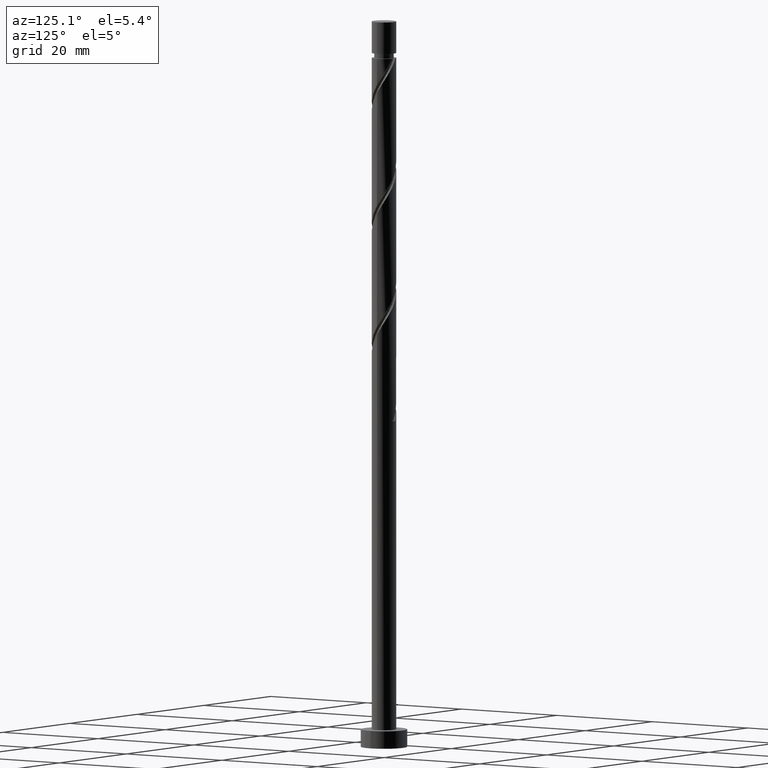
[diagram: clean part render]
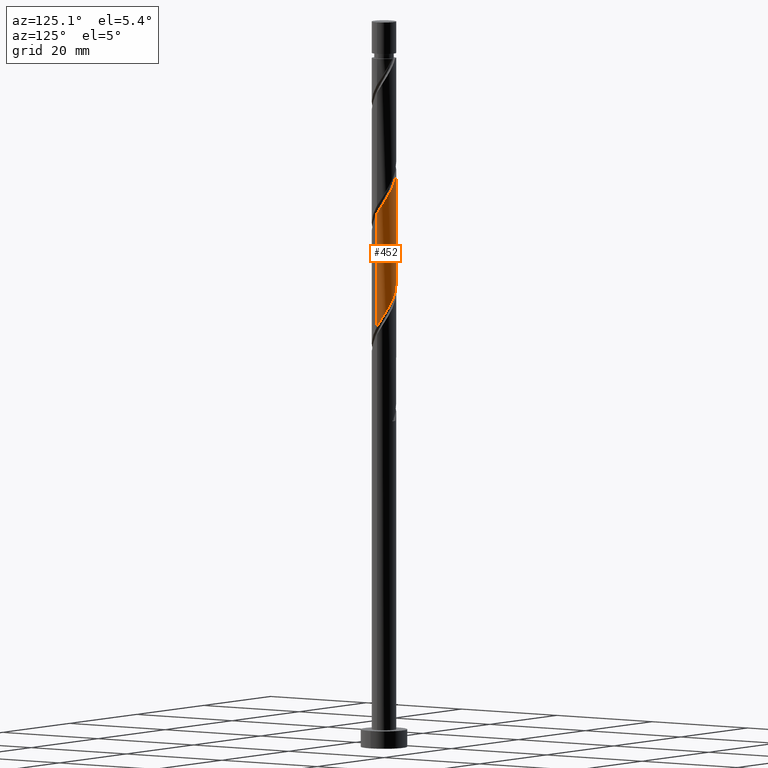
[diagram: same view with one face highlighted and labeled with its STEP entity id]
A machine part, auxiliary view. The second image highlights one B-rep face of the part: STEP entity #452.
In plain terms, the highlighted cylindrical surface (edge-blend (fillet) strip) has radius 2.1 mm, axis along (-0, -0, -1).
Its self-contained STEP definition (entity closure, byte-faithful):
#16 = CARTESIAN_POINT ( 'NONE',  ( 2.058000000000002938, 0.4178947235847808583, 92.69254614362534994 ) ) ;
#53 = ORIENTED_EDGE ( 'NONE', *, *, #568, .F. ) ;
#56 = VECTOR ( 'NONE', #700, 1000.000000000000000 ) ;
#63 = VERTEX_POINT ( 'NONE', #326 ) ;
#95 = CARTESIAN_POINT ( 'NONE',  ( -2.100000000000000089, -2.863682631592311736E-15, 82.94068191842897875 ) ) ;
#110 = CARTESIAN_POINT ( 'NONE',  ( -0.8715781159782010068, 1.910589329957615545, 79.15087947695870696 ) ) ;
#149 = CARTESIAN_POINT ( 'NONE',  ( 1.828137739088110614, 1.033398474414310542, 93.73421281029200713 ) ) ;
#177 = CARTESIAN_POINT ( 'NONE',  ( -2.100000000000000089, 0.000000000000000000, 125.0000000000000000 ) ) ;
#220 = CARTESIAN_POINT ( 'NONE',  ( 2.086410881982744492, 0.2385154744329734122, 72.90087947695867854 ) ) ;
#238 = CARTESIAN_POINT ( 'NONE',  ( -2.057999999999999829, 0.4178947235847810804, 82.27587947695870696 ) ) ;
#245 = CARTESIAN_POINT ( 'NONE',  ( 1.033398474414310320, 1.828137739088107505, 76.02587947695869275 ) ) ;
#263 = CARTESIAN_POINT ( 'NONE',  ( 1.991811978090451074, 0.7438499017726770690, 93.21337947695869275 ) ) ;
#264 = EDGE_CURVE ( 'NONE', #63, #297, #578, .T. ) ;
#278 = CARTESIAN_POINT ( 'NONE',  ( 0.2385154744329750776, 2.086410881982748489, 96.85921281029200713 ) ) ;
#297 = VERTEX_POINT ( 'NONE', #349 ) ;
#309 = LINE ( 'NONE', #177, #56 ) ;
#317 = VERTEX_POINT ( 'NONE', #826 ) ;
#326 = CARTESIAN_POINT ( 'NONE',  ( 2.100000000000003197, 2.114027492432004742E-15, 92.02774370215507815 ) ) ;
#328 = FACE_OUTER_BOUND ( 'NONE', #646, .T. ) ;
#346 = CARTESIAN_POINT ( 'NONE',  ( 1.547745982457618963, 1.419324618889667766, 74.98421281029199292 ) ) ;
#349 = CARTESIAN_POINT ( 'NONE',  ( -2.100000000000003642, -1.319393044922102325E-15, 102.4444103688217496 ) ) ;
#355 = CARTESIAN_POINT ( 'NONE',  ( -1.991811978090447521, 0.7438499017726768470, 81.75504614362537836 ) ) ;
#360 = EDGE_CURVE ( 'NONE', #63, #317, #949, .T. ) ;
#365 = CARTESIAN_POINT ( 'NONE',  ( 1.772544917859294689, 1.174185737693568266, 74.46337947695867854 ) ) ;
#384 = CARTESIAN_POINT ( 'NONE',  ( -0.7438499017726775131, 1.991811978090451074, 98.42171281029202135 ) ) ;
#389 = CARTESIAN_POINT ( 'NONE',  ( 0.8715781159782027832, 1.910589329957617988, 95.81754614362534994 ) ) ;
#444 = VECTOR ( 'NONE', #719, 1000.000000000000000 ) ;
#452 = ADVANCED_FACE ( 'NONE', ( #328 ), #922, .T. ) ;
#459 = ORIENTED_EDGE ( 'NONE', *, *, #360, .T. ) ;
#484 = CARTESIAN_POINT ( 'NONE',  ( -1.664463500085766823, 1.322947047055942793, 80.71337947695867854 ) ) ;
#505 = CARTESIAN_POINT ( 'NONE',  ( 1.174185737693570930, 1.772544917859297131, 95.29671281029200713 ) ) ;
#563 = VERTEX_POINT ( 'NONE', #1178 ) ;
#568 = EDGE_CURVE ( 'NONE', #297, #563, #309, .T. ) ;
#578 =( BOUNDED_CURVE ( )  B_SPLINE_CURVE ( 2, ( #1247, #1479, #16, #263, #149, #762, #1253, #505, #389, #1469, #278, #643, #877, #384, #1130, #1486, #871, #1242, #1121, #638, #1003, #997, #756 ),
 .UNSPECIFIED., .F., .T. ) 
 B_SPLINE_CURVE_WITH_KNOTS ( ( 3, 2, 2, 2, 2, 2, 2, 2, 2, 2, 2, 3 ),
 ( 0.4295322023138551382, 0.4375000000000000000, 0.4499999999999999556, 0.4625000000000000222, 0.4749999999999999778, 0.4875000000000000444, 0.5000000000000000000, 0.5124999999999999556, 0.5250000000000000222, 0.5374999999999999778, 0.5500000000000000444, 0.5545322023138552492 ),
 .UNSPECIFIED. ) 
 CURVE ( )  GEOMETRIC_REPRESENTATION_ITEM ( )  RATIONAL_B_SPLINE_CURVE ( ( 0.9039174447099407317, 0.9019565955404699187, 0.9090909090909184975, 0.8978984914501344505, 0.9090909090909184975, 0.8978984914501344505, 0.9090909090909184975, 0.8978984914501344505, 0.9090909090909184975, 0.8978984914501344505, 0.9090909090909184975, 0.8978984914501344505, 0.9090909090909184975, 0.8978984914501344505, 0.9090909090909184975, 0.8978984914501344505, 0.9090909090909184975, 0.8978984914501344505, 0.9090909090909184975, 0.8978984914501344505, 0.9090909090909184975, 0.9050328050005829184, 0.9039174447099407317 ) ) 
 REPRESENTATION_ITEM ( '' )  );
#583 = CARTESIAN_POINT ( 'NONE',  ( 0.09193954539688536931, 2.124188021909552582, 77.58837947695870696 ) ) ;
#610 = CARTESIAN_POINT ( 'NONE',  ( -1.419324618889668210, 1.547745982457618741, 80.19254614362532152 ) ) ;
#611 =( BOUNDED_CURVE ( )  B_SPLINE_CURVE ( 2, ( #95, #1206, #238, #355, #1341, #484, #610, #885, #110, #945, #965, #583, #1434, #1458, #245, #740, #346, #365, #1452, #829, #220, #716, #733 ),
 .UNSPECIFIED., .F., .T. ) 
 B_SPLINE_CURVE_WITH_KNOTS ( ( 3, 2, 2, 2, 2, 2, 2, 2, 2, 2, 2, 3 ),
 ( 0.6795322023138551382, 0.6875000000000000000, 0.6999999999999999556, 0.7125000000000000222, 0.7249999999999999778, 0.7375000000000000444, 0.7500000000000000000, 0.7624999999999999556, 0.7750000000000000222, 0.7874999999999999778, 0.8000000000000000444, 0.8045322023138550271 ),
 .UNSPECIFIED. ) 
 CURVE ( )  GEOMETRIC_REPRESENTATION_ITEM ( )  RATIONAL_B_SPLINE_CURVE ( ( 0.9039174447099340703, 0.9019565955404633684, 0.9090909090909118362, 0.8978984914501279002, 0.9090909090909118362, 0.8978984914501279002, 0.9090909090909118362, 0.8978984914501279002, 0.9090909090909118362, 0.8978984914501279002, 0.9090909090909118362, 0.8978984914501279002, 0.9090909090909118362, 0.8978984914501279002, 0.9090909090909118362, 0.8978984914501279002, 0.9090909090909118362, 0.8978984914501279002, 0.9090909090909118362, 0.8978984914501279002, 0.9090909090909118362, 0.9050328050005764791, 0.9039174447099341814 ) ) 
 REPRESENTATION_ITEM ( '' )  );
#638 = CARTESIAN_POINT ( 'NONE',  ( -2.048633742055939955, 0.5689704942628340811, 101.5467128102920356 ) ) ;
#643 = CARTESIAN_POINT ( 'NONE',  ( -0.09193954539688459215, 2.124188021909555690, 97.38004614362536415 ) ) ;
#646 = EDGE_LOOP ( 'NONE', ( #1158, #459, #1047, #53 ) ) ;
#684 = CARTESIAN_POINT ( 'NONE',  ( 0.000000000000000000, 0.000000000000000000, 125.0000000000000000 ) ) ;
#700 = DIRECTION ( 'NONE',  ( -0.000000000000000000, -0.000000000000000000, -1.000000000000000000 ) ) ;
#716 = CARTESIAN_POINT ( 'NONE',  ( 2.099999999999999645, 0.1196448486375127768, 72.71352634096956535 ) ) ;
#719 = DIRECTION ( 'NONE',  ( -0.000000000000000000, -0.000000000000000000, -1.000000000000000000 ) ) ;
#733 = CARTESIAN_POINT ( 'NONE',  ( 2.100000000000000089, 2.608799884277812170E-15, 72.52401525176230734 ) ) ;
#740 = CARTESIAN_POINT ( 'NONE',  ( 1.322947047055943237, 1.664463500085766823, 75.50504614362536415 ) ) ;
#742 = EDGE_CURVE ( 'NONE', #563, #317, #611, .T. ) ;
#756 = CARTESIAN_POINT ( 'NONE',  ( -2.100000000000003642, -1.319393044922102127E-15, 102.4444103688217638 ) ) ;
#762 = CARTESIAN_POINT ( 'NONE',  ( 1.664463500085770598, 1.322947047055944569, 94.25504614362534994 ) ) ;
#826 = CARTESIAN_POINT ( 'NONE',  ( 2.100000000000000089, 2.608799884277812564E-15, 72.52401525176230734 ) ) ;
#829 = CARTESIAN_POINT ( 'NONE',  ( 2.048633742055937290, 0.5689704942628323048, 73.42171281029203556 ) ) ;
#836 = CARTESIAN_POINT ( 'NONE',  ( 2.100000000000000089, 2.571758278209441464E-16, 125.0000000000000000 ) ) ;
#871 = CARTESIAN_POINT ( 'NONE',  ( -1.547745982457620739, 1.419324618889670209, 99.98421281029199292 ) ) ;
#877 = CARTESIAN_POINT ( 'NONE',  ( -0.4178947235847808028, 2.058000000000002938, 97.90087947695867854 ) ) ;
#885 = CARTESIAN_POINT ( 'NONE',  ( -1.174185737693568932, 1.772544917859294467, 79.67171281029203556 ) ) ;
#922 = CYLINDRICAL_SURFACE ( 'NONE', #1286, 2.100000000000000089 ) ;
#945 = CARTESIAN_POINT ( 'NONE',  ( -0.5689704942628327489, 2.048633742055936846, 78.63004614362536415 ) ) ;
#949 = LINE ( 'NONE', #836, #444 ) ;
#965 = CARTESIAN_POINT ( 'NONE',  ( -0.2385154744329738841, 2.086410881982744492, 78.10921281029200713 ) ) ;
#997 = CARTESIAN_POINT ( 'NONE',  ( -2.100000000000003642, 0.1196448486375079612, 102.2548992796144915 ) ) ;
#1003 = CARTESIAN_POINT ( 'NONE',  ( -2.086410881982748045, 0.2385154744329746335, 102.0675461436253499 ) ) ;
#1047 = ORIENTED_EDGE ( 'NONE', *, *, #742, .F. ) ;
#1121 = CARTESIAN_POINT ( 'NONE',  ( -1.910589329957617988, 0.8715781159782025611, 101.0258794769586501 ) ) ;
#1130 = CARTESIAN_POINT ( 'NONE',  ( -1.033398474414310764, 1.828137739088110614, 98.94254614362534994 ) ) ;
#1158 = ORIENTED_EDGE ( 'NONE', *, *, #264, .F. ) ;
#1178 = CARTESIAN_POINT ( 'NONE',  ( -2.100000000000000089, -2.863682631592311736E-15, 82.94068191842896454 ) ) ;
#1206 = CARTESIAN_POINT ( 'NONE',  ( -2.100000000000000089, 0.2110579412044334691, 82.60637734302109436 ) ) ;
#1242 = CARTESIAN_POINT ( 'NONE',  ( -1.772544917859297353, 1.174185737693570708, 100.5050461436253357 ) ) ;
#1247 = CARTESIAN_POINT ( 'NONE',  ( 2.100000000000003197, 2.114027492432004742E-15, 92.02774370215507815 ) ) ;
#1253 = CARTESIAN_POINT ( 'NONE',  ( 1.419324618889670209, 1.547745982457620295, 94.77587947695867854 ) ) ;
#1286 = AXIS2_PLACEMENT_3D ( 'NONE', #684, #1541, #1503 ) ;
#1341 = CARTESIAN_POINT ( 'NONE',  ( -1.828137739088107505, 1.033398474414309876, 81.23421281029203556 ) ) ;
#1434 = CARTESIAN_POINT ( 'NONE',  ( 0.4178947235847814690, 2.057999999999999829, 77.06754614362536415 ) ) ;
#1452 = CARTESIAN_POINT ( 'NONE',  ( 1.910589329957615545, 0.8715781159782005627, 73.94254614362536415 ) ) ;
#1458 = CARTESIAN_POINT ( 'NONE',  ( 0.7438499017726771800, 1.991811978090447299, 76.54671281029202135 ) ) ;
#1469 = CARTESIAN_POINT ( 'NONE',  ( 0.5689704942628345252, 2.048633742055939955, 96.33837947695869275 ) ) ;
#1479 = CARTESIAN_POINT ( 'NONE',  ( 2.100000000000003642, 0.2110579412044329140, 92.36204827756289149 ) ) ;
#1486 = CARTESIAN_POINT ( 'NONE',  ( -1.322947047055944791, 1.664463500085770375, 99.46337947695870696 ) ) ;
#1503 = DIRECTION ( 'NONE',  ( -1.000000000000000000, 0.000000000000000000, 0.000000000000000000 ) ) ;
#1541 = DIRECTION ( 'NONE',  ( -0.000000000000000000, -0.000000000000000000, -1.000000000000000000 ) ) ;